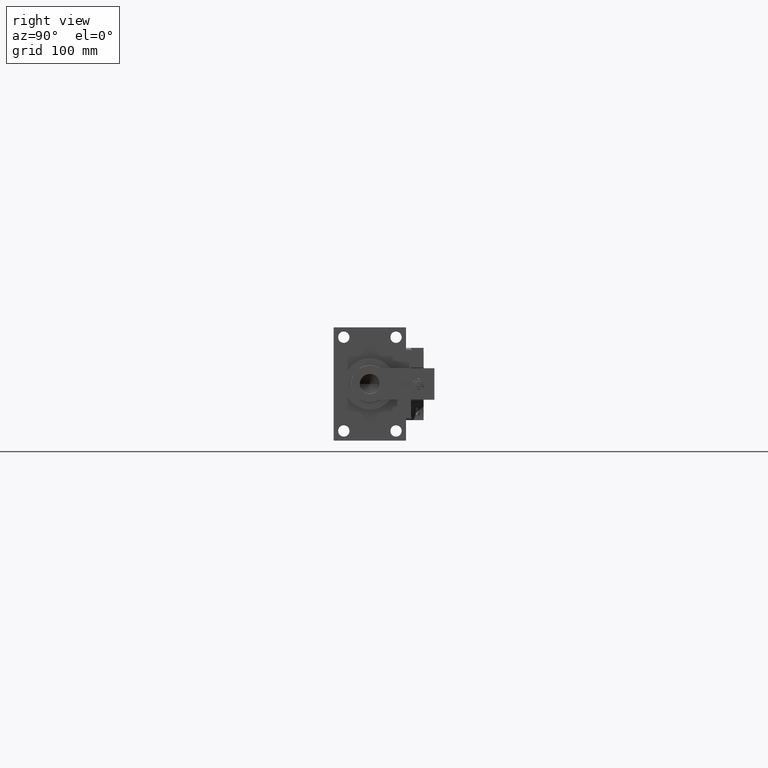
[diagram: clean part render]
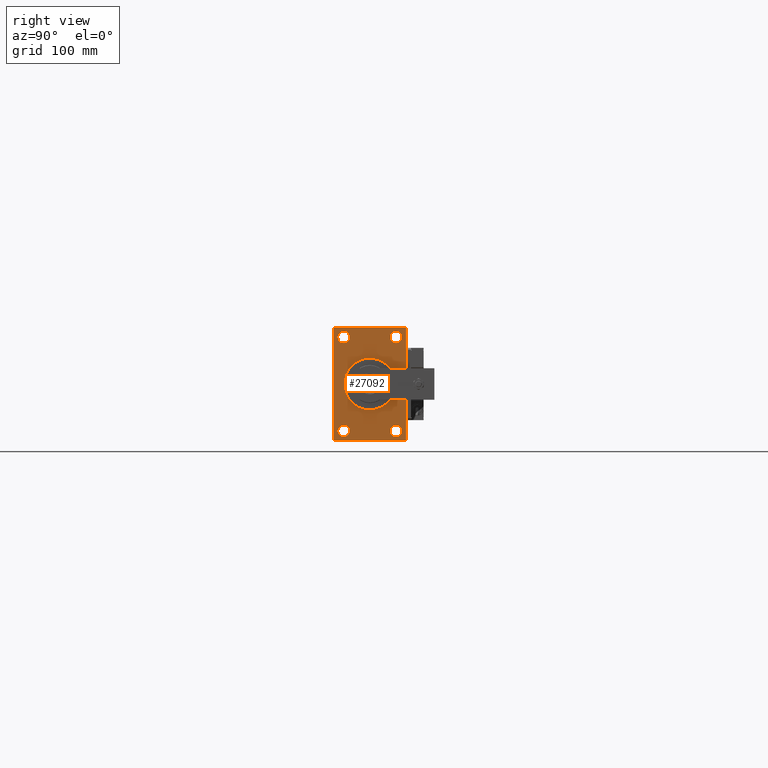
[diagram: same view with one face highlighted and labeled with its STEP entity id]
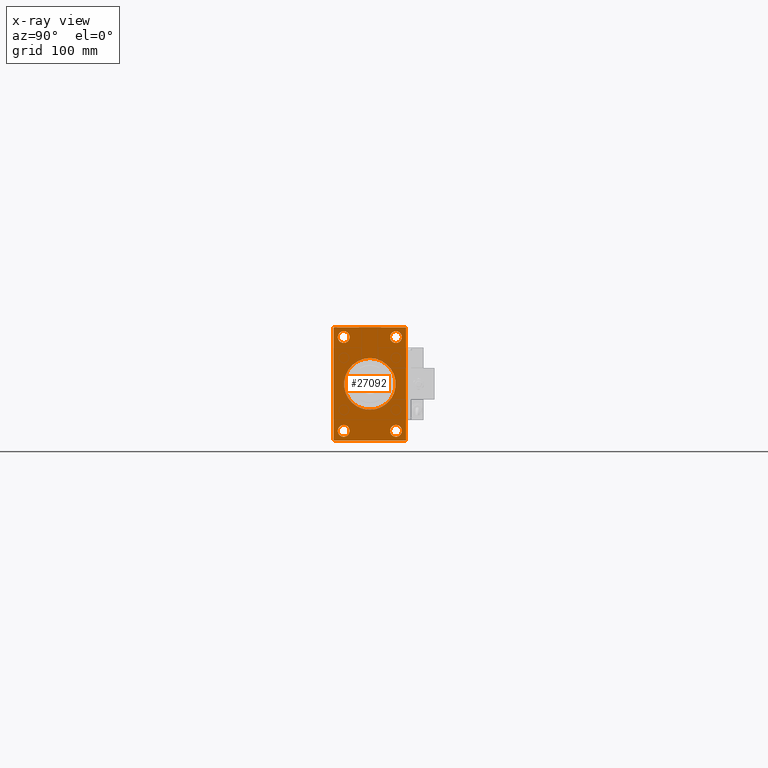
[diagram: x-ray of the same camera — body ghosted, the highlighted face saturated]
A machine part, right view. The second image highlights one B-rep face of the part: STEP entity #27092.
The next image is the same camera in x-ray: the body ghosted, the highlighted face saturated — about 0% of this face is hidden behind the body in this view.
In plain terms, the highlighted planar face has unit normal (-1, 0, 0).
Its self-contained STEP definition (entity closure, byte-faithful):
#385 = VERTEX_POINT ( 'NONE', #12555 ) ;
#738 = FACE_OUTER_BOUND ( 'NONE', #6804, .T. ) ;
#1035 = LINE ( 'NONE', #26862, #49594 ) ;
#1394 = CARTESIAN_POINT ( 'NONE',  ( 1038.000000000000000, 41.49999999999999289, -83.99999999999982947 ) ) ;
#2225 = DIRECTION ( 'NONE',  ( 0.000000000000000000, 0.000000000000000000, -1.000000000000000000 ) ) ;
#2318 = CARTESIAN_POINT ( 'NONE',  ( 1038.000000000000000, 57.00000000000005684, -90.00000000000000000 ) ) ;
#2720 = CIRCLE ( 'NONE', #52022, 41.00000000000000000 ) ;
#2753 = AXIS2_PLACEMENT_3D ( 'NONE', #7040, #32856, #10689 ) ;
#4233 = DIRECTION ( 'NONE',  ( 0.000000000000000000, 0.000000000000000000, 1.000000000000000000 ) ) ;
#4292 = DIRECTION ( 'NONE',  ( 0.000000000000000000, 0.000000000000000000, -1.000000000000000000 ) ) ;
#4327 = CARTESIAN_POINT ( 'NONE',  ( 1038.000000000000000, 57.50000000000000000, 89.50000000000005684 ) ) ;
#4481 = DIRECTION ( 'NONE',  ( 0.000000000000000000, 0.7071067811866260655, -0.7071067811864690800 ) ) ;
#4524 = LINE ( 'NONE', #34536, #8192 ) ;
#4568 = ORIENTED_EDGE ( 'NONE', *, *, #37992, .T. ) ;
#4809 = CARTESIAN_POINT ( 'NONE',  ( 1038.000000000000000, -41.50000000000000711, 83.99999999999985789 ) ) ;
#4979 = CIRCLE ( 'NONE', #24689, 9.499999999999841904 ) ;
#5200 = ORIENTED_EDGE ( 'NONE', *, *, #23919, .F. ) ;
#5271 = CARTESIAN_POINT ( 'NONE',  ( 1038.000000000000000, 5.021051876504148963E-15, -41.00000000000000000 ) ) ;
#5785 = EDGE_CURVE ( 'NONE', #41315, #37579, #33282, .T. ) ;
#5947 = VERTEX_POINT ( 'NONE', #29212 ) ;
#6148 = LINE ( 'NONE', #32238, #50123 ) ;
#6406 = ORIENTED_EDGE ( 'NONE', *, *, #29803, .T. ) ;
#6707 = AXIS2_PLACEMENT_3D ( 'NONE', #12884, #40018, #19236 ) ;
#6804 = EDGE_LOOP ( 'NONE', ( #33739, #20204, #5200, #53277, #50453, #44852, #11435, #15281 ) ) ;
#7040 = CARTESIAN_POINT ( 'NONE',  ( 1038.000000000000000, 41.49999999999999289, -74.49999999999998579 ) ) ;
#7397 = DIRECTION ( 'NONE',  ( 1.000000000000000000, 0.000000000000000000, 0.000000000000000000 ) ) ;
#7712 = CIRCLE ( 'NONE', #14895, 9.499999999999841904 ) ;
#7947 = DIRECTION ( 'NONE',  ( 0.000000000000000000, 0.000000000000000000, 1.000000000000000000 ) ) ;
#8192 = VECTOR ( 'NONE', #51940, 1000.000000000000000 ) ;
#8681 = LINE ( 'NONE', #42927, #38492 ) ;
#8733 = VERTEX_POINT ( 'NONE', #23341 ) ;
#9099 = CIRCLE ( 'NONE', #36880, 9.499999999999841904 ) ;
#9158 = FACE_BOUND ( 'NONE', #47888, .T. ) ;
#9373 = CARTESIAN_POINT ( 'NONE',  ( 1038.000000000000000, 0.000000000000000000, 41.00000000000000000 ) ) ;
#9562 = VECTOR ( 'NONE', #25141, 1000.000000000000114 ) ;
#9861 = VERTEX_POINT ( 'NONE', #4327 ) ;
#10402 = CARTESIAN_POINT ( 'NONE',  ( 1038.000000000000000, -57.50000000000000000, 90.00000000000000000 ) ) ;
#10689 = DIRECTION ( 'NONE',  ( 0.000000000000000000, 0.000000000000000000, 1.000000000000000000 ) ) ;
#10796 = CARTESIAN_POINT ( 'NONE',  ( 1038.000000000000000, 56.99999999999994316, 90.00000000000000000 ) ) ;
#11112 = CARTESIAN_POINT ( 'NONE',  ( 1038.000000000000000, 41.49999999999999289, 65.00000000000017053 ) ) ;
#11435 = ORIENTED_EDGE ( 'NONE', *, *, #12612, .T. ) ;
#11562 = EDGE_CURVE ( 'NONE', #51805, #8733, #8681, .T. ) ;
#11651 = CIRCLE ( 'NONE', #43022, 9.499999999999841904 ) ;
#11959 = CARTESIAN_POINT ( 'NONE',  ( 1038.000000000000000, 57.50000000000000000, -89.49999999999994316 ) ) ;
#12357 = AXIS2_PLACEMENT_3D ( 'NONE', #44065, #44348, #2225 ) ;
#12481 = DIRECTION ( 'NONE',  ( 0.000000000000000000, 0.000000000000000000, 1.000000000000000000 ) ) ;
#12555 = CARTESIAN_POINT ( 'NONE',  ( 1038.000000000000000, -41.50000000000000711, -65.00000000000014211 ) ) ;
#12612 = EDGE_CURVE ( 'NONE', #46100, #33143, #6148, .T. ) ;
#12884 = CARTESIAN_POINT ( 'NONE',  ( 1038.000000000000000, 41.49999999999999289, -74.49999999999998579 ) ) ;
#14746 = DIRECTION ( 'NONE',  ( 0.000000000000000000, -0.7071067811866260655, 0.7071067811864690800 ) ) ;
#14895 = AXIS2_PLACEMENT_3D ( 'NONE', #16891, #51956, #51134 ) ;
#15281 = ORIENTED_EDGE ( 'NONE', *, *, #21848, .T. ) ;
#15334 = DIRECTION ( 'NONE',  ( -1.000000000000000000, -0.000000000000000000, -0.000000000000000000 ) ) ;
#15360 = EDGE_CURVE ( 'NONE', #36416, #19884, #11651, .T. ) ;
#15973 = EDGE_CURVE ( 'NONE', #42977, #28349, #2720, .T. ) ;
#16573 = CARTESIAN_POINT ( 'NONE',  ( 1038.000000000000000, -57.50000000000000000, -89.50000000000000000 ) ) ;
#16891 = CARTESIAN_POINT ( 'NONE',  ( 1038.000000000000000, 41.49999999999999289, 74.50000000000001421 ) ) ;
#17105 = EDGE_LOOP ( 'NONE', ( #30479, #6406 ) ) ;
#17225 = VECTOR ( 'NONE', #14746, 1000.000000000000114 ) ;
#17328 = EDGE_LOOP ( 'NONE', ( #33879, #18614 ) ) ;
#17593 = FACE_BOUND ( 'NONE', #38326, .T. ) ;
#17865 = PLANE ( 'NONE',  #26129 ) ;
#18614 = ORIENTED_EDGE ( 'NONE', *, *, #15973, .F. ) ;
#19236 = DIRECTION ( 'NONE',  ( 0.000000000000000000, 0.000000000000000000, 1.000000000000000000 ) ) ;
#19884 = VERTEX_POINT ( 'NONE', #37378 ) ;
#20204 = ORIENTED_EDGE ( 'NONE', *, *, #11562, .T. ) ;
#20425 = EDGE_LOOP ( 'NONE', ( #22494, #54373 ) ) ;
#21798 = DIRECTION ( 'NONE',  ( -1.000000000000000000, 0.000000000000000000, -0.000000000000000000 ) ) ;
#21848 = EDGE_CURVE ( 'NONE', #33143, #49297, #1035, .T. ) ;
#22494 = ORIENTED_EDGE ( 'NONE', *, *, #36412, .T. ) ;
#22639 = FACE_BOUND ( 'NONE', #17328, .T. ) ;
#22936 = DIRECTION ( 'NONE',  ( -0.000000000000000000, -0.7071067811864690800, -0.7071067811866260655 ) ) ;
#23341 = CARTESIAN_POINT ( 'NONE',  ( 1038.000000000000000, -56.99999999999994316, -90.00000000000000000 ) ) ;
#23919 = EDGE_CURVE ( 'NONE', #41315, #8733, #4524, .T. ) ;
#24185 = VERTEX_POINT ( 'NONE', #11112 ) ;
#24570 = DIRECTION ( 'NONE',  ( 0.000000000000000000, 0.000000000000000000, 1.000000000000000000 ) ) ;
#24689 = AXIS2_PLACEMENT_3D ( 'NONE', #54331, #15334, #24570 ) ;
#24786 = DIRECTION ( 'NONE',  ( -1.000000000000000000, -0.000000000000000000, -0.000000000000000000 ) ) ;
#25141 = DIRECTION ( 'NONE',  ( -0.000000000000000000, 0.7071067811864690800, 0.7071067811866260655 ) ) ;
#25303 = CIRCLE ( 'NONE', #41465, 9.499999999999841904 ) ;
#25336 = LINE ( 'NONE', #43008, #40851 ) ;
#25661 = DIRECTION ( 'NONE',  ( -1.000000000000000000, -0.000000000000000000, -0.000000000000000000 ) ) ;
#25688 = EDGE_CURVE ( 'NONE', #5947, #42019, #32433, .T. ) ;
#26129 = AXIS2_PLACEMENT_3D ( 'NONE', #31047, #21798, #48179 ) ;
#26765 = EDGE_CURVE ( 'NONE', #40925, #24185, #9099, .T. ) ;
#26862 = CARTESIAN_POINT ( 'NONE',  ( 1038.000000000000000, -57.50000000000000000, 89.49999999999994316 ) ) ;
#27092 = ADVANCED_FACE ( 'NONE', ( #9158, #39203, #17593, #43130, #22639, #738 ), #17865, .F. ) ;
#27746 = DIRECTION ( 'NONE',  ( 0.000000000000000000, -1.000000000000000000, 0.000000000000000000 ) ) ;
#28349 = VERTEX_POINT ( 'NONE', #9373 ) ;
#28593 = EDGE_CURVE ( 'NONE', #44608, #385, #25303, .T. ) ;
#29212 = CARTESIAN_POINT ( 'NONE',  ( 1038.000000000000000, 41.49999999999999289, -65.00000000000014211 ) ) ;
#29755 = DIRECTION ( 'NONE',  ( -1.000000000000000000, -0.000000000000000000, -0.000000000000000000 ) ) ;
#29803 = EDGE_CURVE ( 'NONE', #385, #44608, #53144, .T. ) ;
#30479 = ORIENTED_EDGE ( 'NONE', *, *, #28593, .T. ) ;
#30891 = EDGE_CURVE ( 'NONE', #49297, #51805, #39898, .T. ) ;
#31047 = CARTESIAN_POINT ( 'NONE',  ( 1038.000000000000000, 0.000000000000000000, 0.000000000000000000 ) ) ;
#31101 = ORIENTED_EDGE ( 'NONE', *, *, #25688, .T. ) ;
#31215 = DIRECTION ( 'NONE',  ( -1.000000000000000000, -0.000000000000000000, -0.000000000000000000 ) ) ;
#32238 = CARTESIAN_POINT ( 'NONE',  ( 1038.000000000000000, 57.50000000000000000, 90.00000000000000000 ) ) ;
#32433 = CIRCLE ( 'NONE', #2753, 9.499999999999841904 ) ;
#32856 = DIRECTION ( 'NONE',  ( -1.000000000000000000, -0.000000000000000000, -0.000000000000000000 ) ) ;
#33143 = VERTEX_POINT ( 'NONE', #35664 ) ;
#33282 = LINE ( 'NONE', #11959, #9562 ) ;
#33578 = EDGE_CURVE ( 'NONE', #42019, #5947, #34465, .T. ) ;
#33739 = ORIENTED_EDGE ( 'NONE', *, *, #30891, .T. ) ;
#33879 = ORIENTED_EDGE ( 'NONE', *, *, #42026, .F. ) ;
#34465 = CIRCLE ( 'NONE', #6707, 9.499999999999841904 ) ;
#34536 = CARTESIAN_POINT ( 'NONE',  ( 1038.000000000000000, 57.50000000000000000, -90.00000000000000000 ) ) ;
#35664 = CARTESIAN_POINT ( 'NONE',  ( 1038.000000000000000, -57.00000000000005684, 90.00000000000000000 ) ) ;
#36061 = LINE ( 'NONE', #10796, #17225 ) ;
#36412 = EDGE_CURVE ( 'NONE', #24185, #40925, #7712, .T. ) ;
#36416 = VERTEX_POINT ( 'NONE', #4809 ) ;
#36880 = AXIS2_PLACEMENT_3D ( 'NONE', #42677, #29755, #4233 ) ;
#36896 = CARTESIAN_POINT ( 'NONE',  ( 1038.000000000000000, -41.50000000000000711, -83.99999999999982947 ) ) ;
#37378 = CARTESIAN_POINT ( 'NONE',  ( 1038.000000000000000, -41.50000000000000711, 65.00000000000017053 ) ) ;
#37427 = CARTESIAN_POINT ( 'NONE',  ( 1038.000000000000000, 0.000000000000000000, 0.000000000000000000 ) ) ;
#37579 = VERTEX_POINT ( 'NONE', #46109 ) ;
#37690 = CARTESIAN_POINT ( 'NONE',  ( 1038.000000000000000, -41.50000000000000711, -74.49999999999998579 ) ) ;
#37694 = DIRECTION ( 'NONE',  ( 0.000000000000000000, 0.000000000000000000, -1.000000000000000000 ) ) ;
#37992 = EDGE_CURVE ( 'NONE', #19884, #36416, #4979, .T. ) ;
#38247 = CARTESIAN_POINT ( 'NONE',  ( 1038.000000000000000, 56.99999999999994316, 90.00000000000000000 ) ) ;
#38326 = EDGE_LOOP ( 'NONE', ( #40210, #31101 ) ) ;
#38360 = EDGE_CURVE ( 'NONE', #9861, #37579, #25336, .T. ) ;
#38492 = VECTOR ( 'NONE', #4481, 1000.000000000000114 ) ;
#38899 = CARTESIAN_POINT ( 'NONE',  ( 1038.000000000000000, -57.50000000000000000, 89.49999999999994316 ) ) ;
#39203 = FACE_BOUND ( 'NONE', #17105, .T. ) ;
#39898 = LINE ( 'NONE', #10402, #42418 ) ;
#40018 = DIRECTION ( 'NONE',  ( -1.000000000000000000, -0.000000000000000000, -0.000000000000000000 ) ) ;
#40210 = ORIENTED_EDGE ( 'NONE', *, *, #33578, .T. ) ;
#40851 = VECTOR ( 'NONE', #4292, 1000.000000000000000 ) ;
#40925 = VERTEX_POINT ( 'NONE', #52074 ) ;
#41315 = VERTEX_POINT ( 'NONE', #2318 ) ;
#41465 = AXIS2_PLACEMENT_3D ( 'NONE', #37690, #24786, #7947 ) ;
#42019 = VERTEX_POINT ( 'NONE', #1394 ) ;
#42026 = EDGE_CURVE ( 'NONE', #28349, #42977, #43720, .T. ) ;
#42374 = AXIS2_PLACEMENT_3D ( 'NONE', #48065, #31215, #44137 ) ;
#42418 = VECTOR ( 'NONE', #53633, 1000.000000000000000 ) ;
#42513 = CARTESIAN_POINT ( 'NONE',  ( 1038.000000000000000, -41.50000000000000711, 74.50000000000001421 ) ) ;
#42677 = CARTESIAN_POINT ( 'NONE',  ( 1038.000000000000000, 41.49999999999999289, 74.50000000000001421 ) ) ;
#42927 = CARTESIAN_POINT ( 'NONE',  ( 1038.000000000000000, -56.99999999999994316, -90.00000000000000000 ) ) ;
#42977 = VERTEX_POINT ( 'NONE', #5271 ) ;
#43008 = CARTESIAN_POINT ( 'NONE',  ( 1038.000000000000000, 57.50000000000000000, 90.00000000000000000 ) ) ;
#43022 = AXIS2_PLACEMENT_3D ( 'NONE', #42513, #25661, #12481 ) ;
#43130 = FACE_BOUND ( 'NONE', #20425, .T. ) ;
#43720 = CIRCLE ( 'NONE', #12357, 41.00000000000000000 ) ;
#44065 = CARTESIAN_POINT ( 'NONE',  ( 1038.000000000000000, 0.000000000000000000, 0.000000000000000000 ) ) ;
#44137 = DIRECTION ( 'NONE',  ( 0.000000000000000000, 0.000000000000000000, 1.000000000000000000 ) ) ;
#44348 = DIRECTION ( 'NONE',  ( 1.000000000000000000, 0.000000000000000000, 0.000000000000000000 ) ) ;
#44577 = ORIENTED_EDGE ( 'NONE', *, *, #15360, .T. ) ;
#44608 = VERTEX_POINT ( 'NONE', #36896 ) ;
#44852 = ORIENTED_EDGE ( 'NONE', *, *, #49366, .T. ) ;
#46100 = VERTEX_POINT ( 'NONE', #38247 ) ;
#46109 = CARTESIAN_POINT ( 'NONE',  ( 1038.000000000000000, 57.50000000000000000, -89.49999999999988631 ) ) ;
#47888 = EDGE_LOOP ( 'NONE', ( #4568, #44577 ) ) ;
#48065 = CARTESIAN_POINT ( 'NONE',  ( 1038.000000000000000, -41.50000000000000711, -74.49999999999998579 ) ) ;
#48179 = DIRECTION ( 'NONE',  ( -0.000000000000000000, 0.000000000000000000, 1.000000000000000000 ) ) ;
#49297 = VERTEX_POINT ( 'NONE', #38899 ) ;
#49366 = EDGE_CURVE ( 'NONE', #9861, #46100, #36061, .T. ) ;
#49594 = VECTOR ( 'NONE', #22936, 1000.000000000000114 ) ;
#50123 = VECTOR ( 'NONE', #27746, 1000.000000000000000 ) ;
#50453 = ORIENTED_EDGE ( 'NONE', *, *, #38360, .F. ) ;
#51134 = DIRECTION ( 'NONE',  ( 0.000000000000000000, 0.000000000000000000, 1.000000000000000000 ) ) ;
#51805 = VERTEX_POINT ( 'NONE', #16573 ) ;
#51940 = DIRECTION ( 'NONE',  ( 0.000000000000000000, -1.000000000000000000, 0.000000000000000000 ) ) ;
#51956 = DIRECTION ( 'NONE',  ( -1.000000000000000000, -0.000000000000000000, -0.000000000000000000 ) ) ;
#52022 = AXIS2_PLACEMENT_3D ( 'NONE', #37427, #7397, #37694 ) ;
#52074 = CARTESIAN_POINT ( 'NONE',  ( 1038.000000000000000, 41.49999999999999289, 83.99999999999985789 ) ) ;
#53144 = CIRCLE ( 'NONE', #42374, 9.499999999999841904 ) ;
#53277 = ORIENTED_EDGE ( 'NONE', *, *, #5785, .T. ) ;
#53633 = DIRECTION ( 'NONE',  ( 0.000000000000000000, 0.000000000000000000, -1.000000000000000000 ) ) ;
#54331 = CARTESIAN_POINT ( 'NONE',  ( 1038.000000000000000, -41.50000000000000711, 74.50000000000001421 ) ) ;
#54373 = ORIENTED_EDGE ( 'NONE', *, *, #26765, .T. ) ;